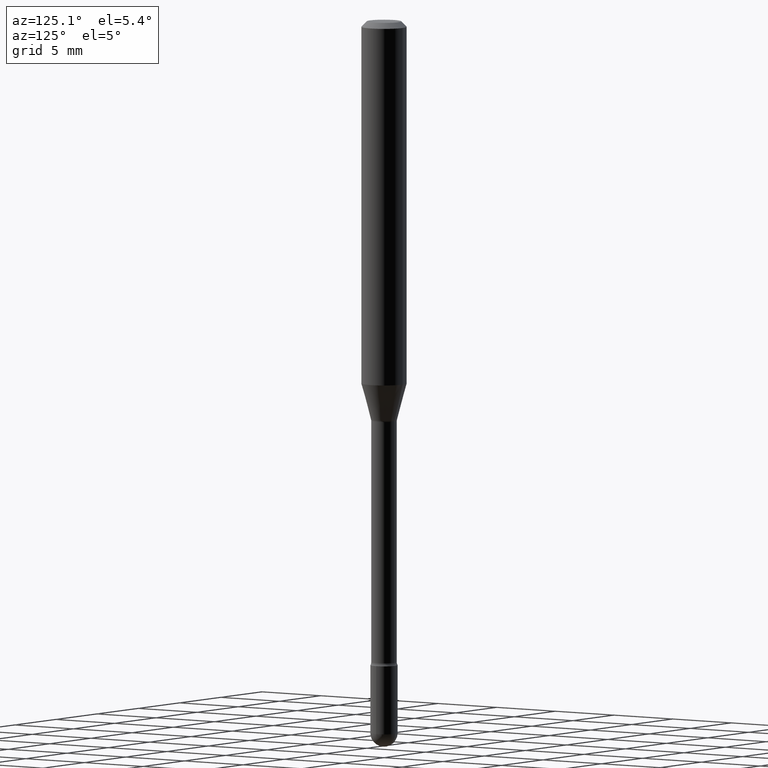
[diagram: clean part render]
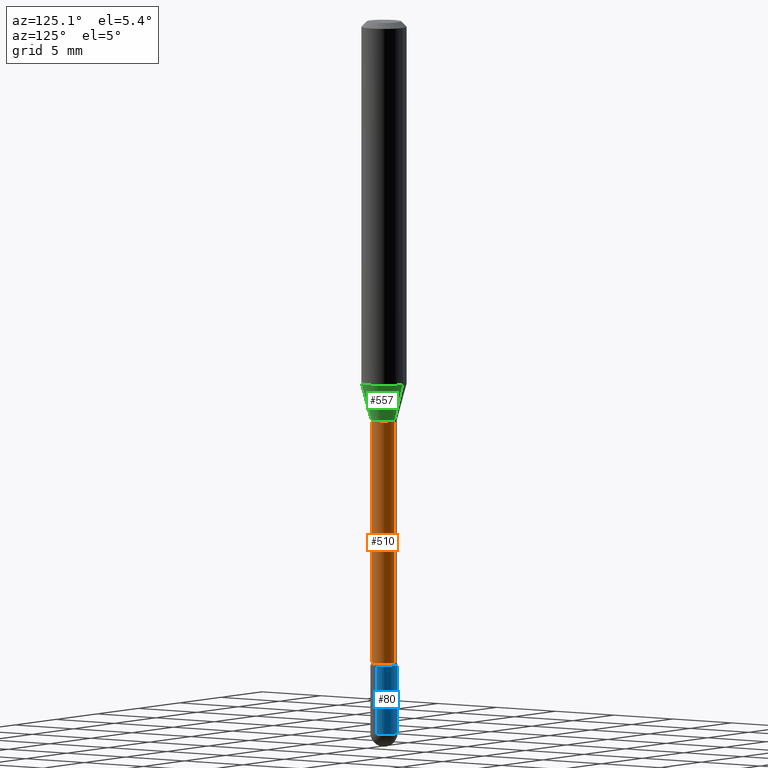
[diagram: same view with three faces highlighted in distinct colors, each labeled with its STEP entity id]
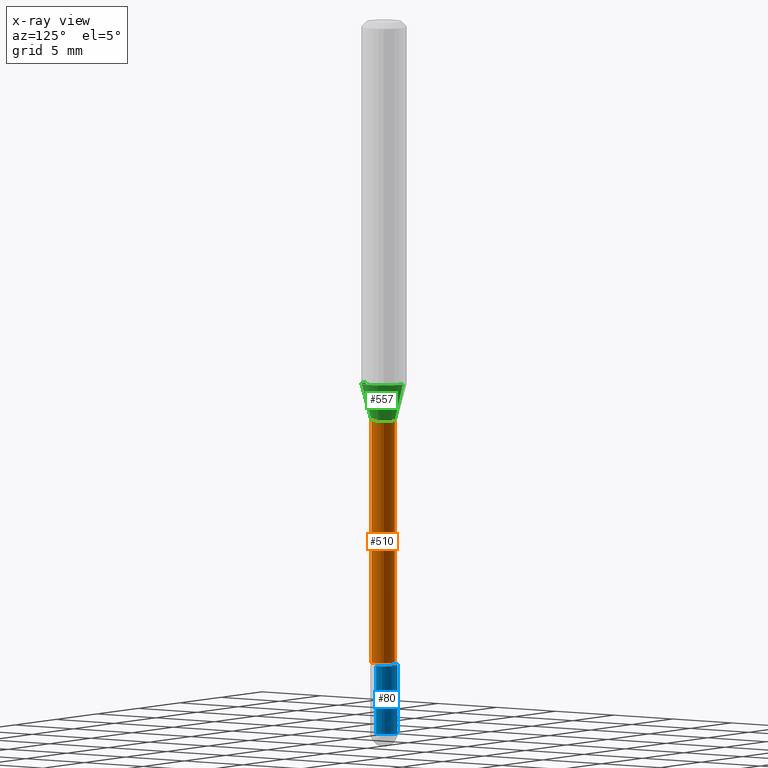
[diagram: x-ray of the same camera — body ghosted, the three highlighted faces saturated]
A machine part, auxiliary view with three faces highlighted in distinct colors.
The next image is the same camera in x-ray (body ghosted, the three faces saturated) — at least one of them is partly hidden behind the body in this view.
Their STEP definitions:

[orange] entity #510 — the highlighted cylindrical surface (edge-blend (fillet) strip) has radius 0.8954 mm, axis along (-0, 0, 1).
#4 = EDGE_CURVE ( 'NONE', #212, #491, #198, .T. ) ;
#12 = CIRCLE ( 'NONE', #61, 0.03524999999999999661 ) ;
#16 = CARTESIAN_POINT ( 'NONE',  ( 4.321349534178693769E-29, -6.169839484215937915E-15, -1.767098259685360606 ) ) ;
#30 = EDGE_CURVE ( 'NONE', #114, #491, #12, .T. ) ;
#48 = ORIENTED_EDGE ( 'NONE', *, *, #30, .F. ) ;
#55 = FACE_OUTER_BOUND ( 'NONE', #336, .T. ) ;
#61 = AXIS2_PLACEMENT_3D ( 'NONE', #525, #184, #470 ) ;
#68 = ORIENTED_EDGE ( 'NONE', *, *, #526, .T. ) ;
#96 = DIRECTION ( 'NONE',  ( -2.445449487878579082E-29, 3.491509003757665551E-15, 1.000000000000000000 ) ) ;
#99 = CARTESIAN_POINT ( 'NONE',  ( 2.504663143554787774E-16, 0.03524999999999615247, -1.101974787463810834 ) ) ;
#114 = VERTEX_POINT ( 'NONE', #254 ) ;
#129 = CARTESIAN_POINT ( 'NONE',  ( 2.584599201327800595E-16, 0.03524999999999392508, -1.767098259685360606 ) ) ;
#163 = VECTOR ( 'NONE', #96, 39.37007874015748143 ) ;
#171 = AXIS2_PLACEMENT_3D ( 'NONE', #236, #351, #200 ) ;
#182 = VECTOR ( 'NONE', #235, 39.37007874015748143 ) ;
#184 = DIRECTION ( 'NONE',  ( -2.445449487878579082E-29, 3.491509003757665551E-15, 1.000000000000000000 ) ) ;
#198 = LINE ( 'NONE', #502, #182 ) ;
#200 = DIRECTION ( 'NONE',  ( -6.982962677686266711E-15, -1.000000000000000000, 3.491509003757667523E-15 ) ) ;
#212 = VERTEX_POINT ( 'NONE', #129 ) ;
#235 = DIRECTION ( 'NONE',  ( -2.445449487878579082E-29, 3.491509003757665551E-15, 1.000000000000000000 ) ) ;
#236 = CARTESIAN_POINT ( 'NONE',  ( -1.169113584055446105E-44, 1.669184350826100908E-30, 4.780733988912460139E-16 ) ) ;
#254 = CARTESIAN_POINT ( 'NONE',  ( -2.461494343884138594E-16, -0.03525000000000384076, -1.101974787463810612 ) ) ;
#284 = CARTESIAN_POINT ( 'NONE',  ( -2.461494343884411737E-16, -0.03525000000000003825, 6.011490912737039707E-16 ) ) ;
#301 = ORIENTED_EDGE ( 'NONE', *, *, #495, .F. ) ;
#307 = AXIS2_PLACEMENT_3D ( 'NONE', #16, #411, #543 ) ;
#336 = EDGE_LOOP ( 'NONE', ( #68, #420, #48, #301 ) ) ;
#351 = DIRECTION ( 'NONE',  ( -2.445449487878579082E-29, 3.491509003757665551E-15, 1.000000000000000000 ) ) ;
#352 = CYLINDRICAL_SURFACE ( 'NONE', #171, 0.03525000000000003825 ) ;
#385 = CIRCLE ( 'NONE', #307, 0.03525000000000008682 ) ;
#411 = DIRECTION ( 'NONE',  ( -2.445449487878579082E-29, 3.491509003757665551E-15, 1.000000000000000000 ) ) ;
#420 = ORIENTED_EDGE ( 'NONE', *, *, #4, .T. ) ;
#446 = CARTESIAN_POINT ( 'NONE',  ( -2.461494343883982794E-16, -0.03525000000000625550, -1.767098259685360606 ) ) ;
#447 = LINE ( 'NONE', #284, #163 ) ;
#470 = DIRECTION ( 'NONE',  ( -6.982962677686265133E-15, -1.000000000000000000, 3.874961693140799059E-15 ) ) ;
#491 = VERTEX_POINT ( 'NONE', #99 ) ;
#495 = EDGE_CURVE ( 'NONE', #519, #114, #447, .T. ) ;
#502 = CARTESIAN_POINT ( 'NONE',  ( 2.504663143554355873E-16, 0.03525000000000003825, 3.549977065087882051E-16 ) ) ;
#510 = ADVANCED_FACE ( 'NONE', ( #55 ), #352, .T. ) ;
#519 = VERTEX_POINT ( 'NONE', #446 ) ;
#525 = CARTESIAN_POINT ( 'NONE',  ( 2.694823679658482289E-29, -3.847554892343835793E-15, -1.101974787463810834 ) ) ;
#526 = EDGE_CURVE ( 'NONE', #519, #212, #385, .T. ) ;
#543 = DIRECTION ( 'NONE',  ( -6.982962677686266711E-15, -1.000000000000000000, 0.000000000000000000 ) ) ;

[blue] entity #80 — the highlighted cylindrical surface (edge-blend (fillet) strip) has radius 0.9525 mm, axis along (-0, 0, 1).
#3 = CARTESIAN_POINT ( 'NONE',  ( 4.799232532138329338E-29, -6.852032127479672087E-15, -1.962499999999999689 ) ) ;
#6 = CIRCLE ( 'NONE', #47, 0.03749999999999999861 ) ;
#8 = DIRECTION ( 'NONE',  ( -2.445468806185136597E-29, 3.491481338843145583E-15, 1.000000000000000000 ) ) ;
#13 = DIRECTION ( 'NONE',  ( 1.000000000000000000, -6.982962677686268288E-15, 0.000000000000000000 ) ) ;
#19 = VERTEX_POINT ( 'NONE', #195 ) ;
#21 = CARTESIAN_POINT ( 'NONE',  ( 0.000000000000000000, 0.000000000000000000, 0.000000000000000000 ) ) ;
#33 = EDGE_LOOP ( 'NONE', ( #522, #120, #362, #144, #116 ) ) ;
#34 = DIRECTION ( 'NONE',  ( -2.445468806185136597E-29, 3.491481338843145583E-15, 1.000000000000000000 ) ) ;
#40 = VERTEX_POINT ( 'NONE', #142 ) ;
#43 = EDGE_CURVE ( 'NONE', #40, #469, #308, .T. ) ;
#47 = AXIS2_PLACEMENT_3D ( 'NONE', #520, #34, #73 ) ;
#49 = CARTESIAN_POINT ( 'NONE',  ( 2.618611004132830729E-16, 0.03749999999999317074, -1.962499999999999689 ) ) ;
#64 = LINE ( 'NONE', #515, #306 ) ;
#73 = DIRECTION ( 'NONE',  ( 1.000000000000000000, -6.982962677686268288E-15, 0.000000000000000000 ) ) ;
#77 = DIRECTION ( 'NONE',  ( 1.000000000000000000, -6.982962677686268288E-15, 0.000000000000000000 ) ) ;
#80 = ADVANCED_FACE ( 'NONE', ( #358 ), #541, .T. ) ;
#98 = EDGE_CURVE ( 'NONE', #542, #146, #6, .T. ) ;
#116 = ORIENTED_EDGE ( 'NONE', *, *, #98, .T. ) ;
#120 = ORIENTED_EDGE ( 'NONE', *, *, #43, .T. ) ;
#142 = CARTESIAN_POINT ( 'NONE',  ( -0.03749999999999999861, -6.258252226053091317E-15, -1.962499999999999689 ) ) ;
#144 = ORIENTED_EDGE ( 'NONE', *, *, #247, .F. ) ;
#146 = VERTEX_POINT ( 'NONE', #49 ) ;
#195 = CARTESIAN_POINT ( 'NONE',  ( 0.03749999999999999861, -6.459240476859818795E-15, -1.775000000000000133 ) ) ;
#229 = EDGE_CURVE ( 'NONE', #146, #40, #338, .T. ) ;
#247 = EDGE_CURVE ( 'NONE', #542, #19, #64, .T. ) ;
#276 = CARTESIAN_POINT ( 'NONE',  ( -0.03749999999999999861, -6.258252226053091317E-15, -1.775000000000000133 ) ) ;
#294 = DIRECTION ( 'NONE',  ( -2.445468806185136877E-29, 3.491481338843145188E-15, 1.000000000000000000 ) ) ;
#306 = VECTOR ( 'NONE', #294, 39.37007874015748143 ) ;
#308 = LINE ( 'NONE', #436, #365 ) ;
#338 = CIRCLE ( 'NONE', #496, 0.03749999999999999861 ) ;
#357 = CIRCLE ( 'NONE', #498, 0.03749999999999999861 ) ;
#358 = FACE_OUTER_BOUND ( 'NONE', #33, .T. ) ;
#362 = ORIENTED_EDGE ( 'NONE', *, *, #504, .F. ) ;
#365 = VECTOR ( 'NONE', #479, 39.37007874015748143 ) ;
#405 = DIRECTION ( 'NONE',  ( -2.445468806185136597E-29, 3.491481338843145583E-15, 1.000000000000000000 ) ) ;
#412 = DIRECTION ( 'NONE',  ( 1.000000000000000000, -6.982962677686266711E-15, 4.876176775795935793E-29 ) ) ;
#414 = AXIS2_PLACEMENT_3D ( 'NONE', #21, #530, #412 ) ;
#436 = CARTESIAN_POINT ( 'NONE',  ( -0.03749999999999999861, 2.664535259100375598E-16, -1.844600658845589808E-30 ) ) ;
#452 = CARTESIAN_POINT ( 'NONE',  ( 0.03749999999999999861, -6.786566852376363731E-15, -1.962499999999999689 ) ) ;
#469 = VERTEX_POINT ( 'NONE', #276 ) ;
#479 = DIRECTION ( 'NONE',  ( -2.445468806185136877E-29, 3.491481338843145188E-15, 1.000000000000000000 ) ) ;
#496 = AXIS2_PLACEMENT_3D ( 'NONE', #3, #8, #77 ) ;
#498 = AXIS2_PLACEMENT_3D ( 'NONE', #536, #405, #13 ) ;
#504 = EDGE_CURVE ( 'NONE', #19, #469, #357, .T. ) ;
#515 = CARTESIAN_POINT ( 'NONE',  ( 0.03749999999999999861, -2.618611004132350016E-16, 1.828566290923475922E-30 ) ) ;
#520 = CARTESIAN_POINT ( 'NONE',  ( 4.799232532138329338E-29, -6.852032127479672087E-15, -1.962499999999999689 ) ) ;
#522 = ORIENTED_EDGE ( 'NONE', *, *, #229, .T. ) ;
#530 = DIRECTION ( 'NONE',  ( -2.445468806185136597E-29, 3.491481338843145583E-15, 1.000000000000000000 ) ) ;
#536 = CARTESIAN_POINT ( 'NONE',  ( 4.340707130978617347E-29, -6.197379376446583794E-15, -1.775000000000000133 ) ) ;
#541 = CYLINDRICAL_SURFACE ( 'NONE', #414, 0.03749999999999999861 ) ;
#542 = VERTEX_POINT ( 'NONE', #452 ) ;

[green] entity #557 — the highlighted conical surface has half-angle 15 deg.
#7 = CONICAL_SURFACE ( 'NONE', #415, 0.03576111260566397498, 0.2617993877991499629 ) ;
#25 = CARTESIAN_POINT ( 'NONE',  ( -2.497185146378605472E-16, -0.03576111260566780525, -1.098092501787272912 ) ) ;
#27 = ORIENTED_EDGE ( 'NONE', *, *, #123, .F. ) ;
#28 = AXIS2_PLACEMENT_3D ( 'NONE', #231, #92, #376 ) ;
#56 = ORIENTED_EDGE ( 'NONE', *, *, #484, .F. ) ;
#59 = DIRECTION ( 'NONE',  ( -1.807323732225328167E-15, -0.2588190451025179084, 0.9659258262890690894 ) ) ;
#83 = DIRECTION ( 'NONE',  ( -6.982962677686265922E-15, -1.000000000000000000, 4.370956789862821150E-15 ) ) ;
#92 = DIRECTION ( 'NONE',  ( -2.445449487878579082E-29, 3.491509003757665551E-15, 1.000000000000000000 ) ) ;
#106 = CARTESIAN_POINT ( 'NONE',  ( 4.440892098500869722E-16, 0.06249999999999652361, -0.9983016154937485176 ) ) ;
#123 = EDGE_CURVE ( 'NONE', #264, #462, #463, .T. ) ;
#127 = CARTESIAN_POINT ( 'NONE',  ( 3.490935988483243741E-16, 0.03576111260566013778, -1.098092501787273356 ) ) ;
#131 = CARTESIAN_POINT ( 'NONE',  ( 2.441296174357545252E-29, -3.485579078962245490E-15, -0.9983016154937482955 ) ) ;
#139 = CARTESIAN_POINT ( 'NONE',  ( -4.364351673553671654E-16, -0.06250000000000346945, -0.9983016154937480735 ) ) ;
#161 = DIRECTION ( 'NONE',  ( -2.445449487878579082E-29, 3.491509003757665551E-15, 1.000000000000000000 ) ) ;
#170 = AXIS2_PLACEMENT_3D ( 'NONE', #131, #471, #83 ) ;
#190 = EDGE_CURVE ( 'NONE', #327, #374, #382, .T. ) ;
#231 = CARTESIAN_POINT ( 'NONE',  ( 2.685329746138994444E-29, -3.833999856949044561E-15, -1.098092501787273134 ) ) ;
#241 = LINE ( 'NONE', #25, #383 ) ;
#264 = VERTEX_POINT ( 'NONE', #139 ) ;
#281 = CARTESIAN_POINT ( 'NONE',  ( 2.540979878465616281E-16, 0.03576111260566013778, -1.098092501787273356 ) ) ;
#286 = EDGE_CURVE ( 'NONE', #374, #462, #497, .T. ) ;
#327 = VERTEX_POINT ( 'NONE', #431 ) ;
#331 = FACE_OUTER_BOUND ( 'NONE', #529, .T. ) ;
#374 = VERTEX_POINT ( 'NONE', #127 ) ;
#376 = DIRECTION ( 'NONE',  ( -6.982962677686265133E-15, -1.000000000000000000, 3.819579138641765120E-15 ) ) ;
#382 = CIRCLE ( 'NONE', #28, 0.03576111260566397498 ) ;
#383 = VECTOR ( 'NONE', #59, 39.37007874015748143 ) ;
#404 = ORIENTED_EDGE ( 'NONE', *, *, #286, .T. ) ;
#415 = AXIS2_PLACEMENT_3D ( 'NONE', #513, #161, #552 ) ;
#431 = CARTESIAN_POINT ( 'NONE',  ( -2.497185146378605472E-16, -0.03576111260566780525, -1.098092501787272912 ) ) ;
#438 = VECTOR ( 'NONE', #521, 39.37007874015748854 ) ;
#462 = VERTEX_POINT ( 'NONE', #106 ) ;
#463 = CIRCLE ( 'NONE', #170, 0.06250000000000000000 ) ;
#471 = DIRECTION ( 'NONE',  ( -2.445449487878579082E-29, 3.491509003757665551E-15, 1.000000000000000000 ) ) ;
#484 = EDGE_CURVE ( 'NONE', #327, #264, #241, .T. ) ;
#497 = LINE ( 'NONE', #281, #438 ) ;
#500 = ORIENTED_EDGE ( 'NONE', *, *, #190, .T. ) ;
#513 = CARTESIAN_POINT ( 'NONE',  ( 2.685329746138994444E-29, -3.833999856949044561E-15, -1.098092501787273134 ) ) ;
#521 = DIRECTION ( 'NONE',  ( 1.839019923739597949E-15, 0.2588190451025246253, 0.9659258262890670910 ) ) ;
#529 = EDGE_LOOP ( 'NONE', ( #500, #404, #27, #56 ) ) ;
#552 = DIRECTION ( 'NONE',  ( -6.982962677686265133E-15, -1.000000000000000000, 3.819579138641765120E-15 ) ) ;
#557 = ADVANCED_FACE ( 'NONE', ( #331 ), #7, .T. ) ;